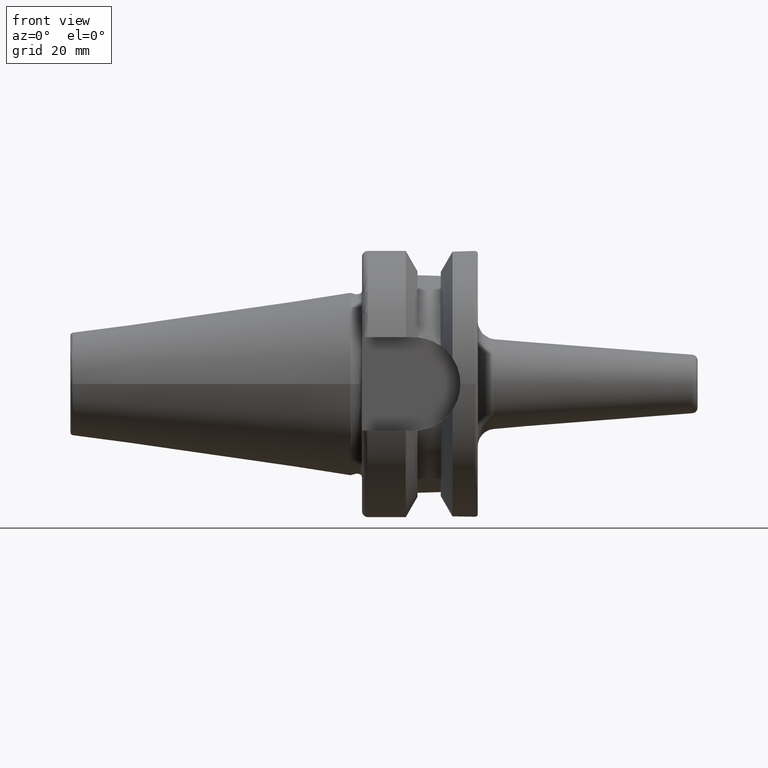
[diagram: clean part render]
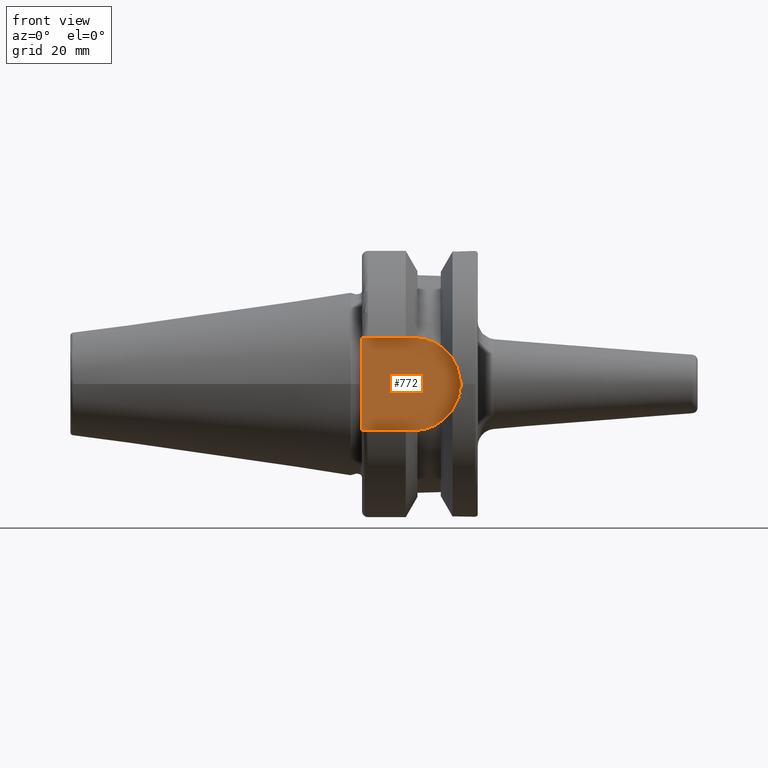
[diagram: same view with one face highlighted and labeled with its STEP entity id]
A machine part, front view. The second image highlights one B-rep face of the part: STEP entity #772.
In plain terms, the highlighted planar face has unit normal (0, 1, 0).
Its self-contained STEP definition (entity closure, byte-faithful):
#62=LINE('',#1321,#101);
#63=LINE('',#1328,#102);
#66=LINE('',#1344,#105);
#101=VECTOR('',#1014,10.);
#102=VECTOR('',#1017,10.);
#105=VECTOR('',#1022,10.);
#148=PLANE('',#862);
#173=FACE_OUTER_BOUND('',#222,.T.);
#222=EDGE_LOOP('',(#586,#587,#588,#589));
#277=CIRCLE('',#859,8.05);
#344=VERTEX_POINT('',#1296);
#345=VERTEX_POINT('',#1298);
#349=VERTEX_POINT('',#1319);
#351=VERTEX_POINT('',#1327);
#430=EDGE_CURVE('',#344,#345,#277,.T.);
#436=EDGE_CURVE('',#349,#344,#62,.T.);
#438=EDGE_CURVE('',#345,#351,#63,.T.);
#442=EDGE_CURVE('',#351,#349,#66,.T.);
#586=ORIENTED_EDGE('',*,*,#438,.F.);
#587=ORIENTED_EDGE('',*,*,#430,.F.);
#588=ORIENTED_EDGE('',*,*,#436,.F.);
#589=ORIENTED_EDGE('',*,*,#442,.F.);
#772=ADVANCED_FACE('',(#173),#148,.F.);
#859=AXIS2_PLACEMENT_3D('',#1299,#1007,#1008);
#862=AXIS2_PLACEMENT_3D('',#1343,#1020,#1021);
#1007=DIRECTION('center_axis',(0.,1.,0.));
#1008=DIRECTION('ref_axis',(0.,0.,1.));
#1014=DIRECTION('',(1.,0.,0.));
#1017=DIRECTION('',(-1.,0.,-4.96189061284986E-16));
#1020=DIRECTION('center_axis',(0.,1.,0.));
#1021=DIRECTION('ref_axis',(0.,0.,1.));
#1022=DIRECTION('',(0.,0.,1.));
#1296=CARTESIAN_POINT('',(10.95,-16.3,8.05));
#1298=CARTESIAN_POINT('',(10.95,-16.3,-8.05));
#1299=CARTESIAN_POINT('Origin',(10.95,-16.3,0.));
#1319=CARTESIAN_POINT('',(1.99999999999999,-16.3,8.05));
#1321=CARTESIAN_POINT('',(1.99999999999999,-16.3,8.05));
#1327=CARTESIAN_POINT('',(1.99999999999999,-16.3,-8.05));
#1328=CARTESIAN_POINT('',(10.95,-16.3,-8.05));
#1343=CARTESIAN_POINT('Origin',(10.5,-16.3,0.));
#1344=CARTESIAN_POINT('',(1.99999999999999,-16.3,0.));